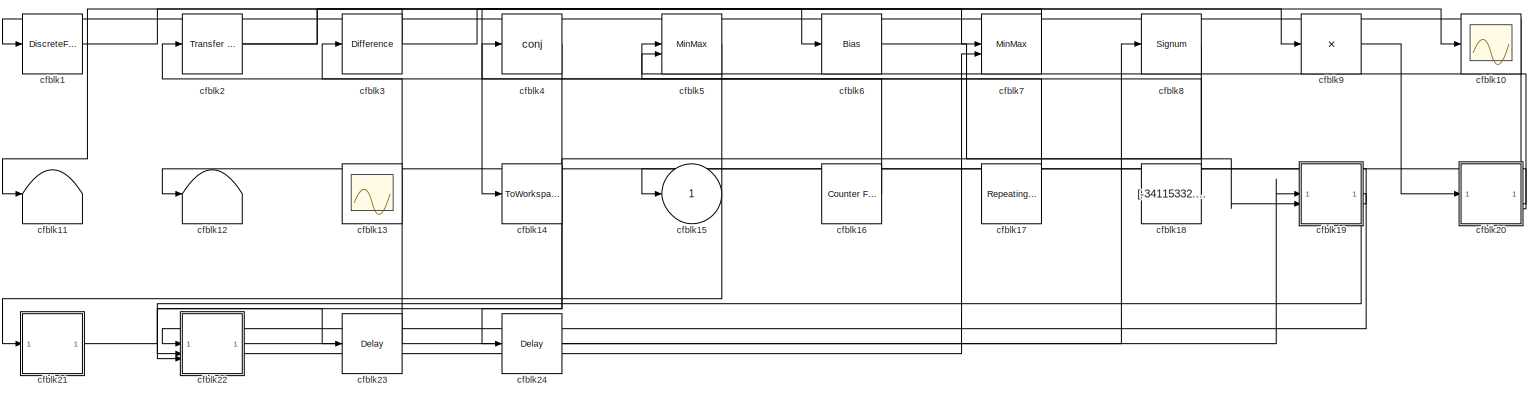
[diagram: root canvas - part 1/1, most of the canvas]
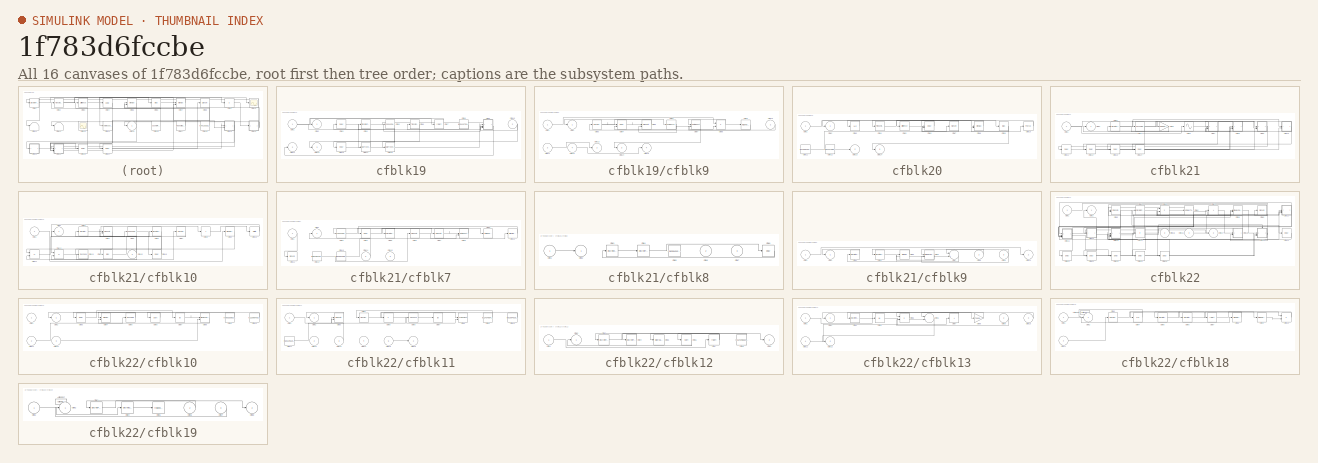
[diagram: thumbnail index - all 16 canvases of the model, root first then tree order]
MODEL slx_1f783d6fccbe
KIND model
CONFIG AbsTol = auto
CONFIG EnableMultiTasking = off
CONFIG FixedStep = auto
CONFIG MaxStep = auto
CONFIG MinStep = auto
CONFIG RelTol = 1e-3
CONFIG SampleTimeConstraint = Unconstrained
CONFIG SolverName = VariableStepAuto
CONFIG StartTime = 0.0
CONFIG StopTime = 10.0
BLOCK [DiscreteFir] cfblk1
  InputPortMap = u0
  OutputPortMap = o0
  SampleTime = 1
BLOCK [Scope] cfblk10
  Floating = off
  NumInputPorts = 1
BLOCK [Terminator] cfblk11
BLOCK [Terminator] cfblk12
BLOCK [Scope] cfblk13
  Floating = on
  NumInputPorts = 1
BLOCK [ToWorkspace] cfblk14
  FixptAsFi = on
  MaxDataPoints = inf
  SampleTime = -1
  SaveFormat = Timeseries
  VariableName = nqrlesy
BLOCK [Outport] cfblk15
BLOCK [Reference] cfblk16  REF=simulink/Sources/Counter
Free-Running
  SourceBlock = simulink/Sources/Counter\nFree-Running
  SourceType = Counter Free-Running
BLOCK [Reference] cfblk17  REF=simulink/Sources/Repeating
Sequence
  SourceBlock = simulink/Sources/Repeating\nSequence
  SourceType = Repeating table
BLOCK [Constant] cfblk18
  SampleTime = 1
  Value = [-34115332.488263]
BLOCK [SubSystem] cfblk19
BLOCK [Inport] cfblk19/cfblk1
BLOCK [Inport] cfblk19/cfblk10
  Port = 2
BLOCK [Outport] cfblk19/cfblk11
  Port = 2
BLOCK [Outport] cfblk19/cfblk12
  Port = 3
BLOCK [Delay] cfblk19/cfblk13
  InputPortMap = u0
  SampleTime = 1
BLOCK [DataTypeConversion] cfblk19/cfblk14
  RndMeth = Floor
  SaturateOnIntegerOverflow = off
BLOCK [DataTypeConversion] cfblk19/cfblk15
  RndMeth = Floor
  SaturateOnIntegerOverflow = off
BLOCK [Outport] cfblk19/cfblk2
BLOCK [Delay] cfblk19/cfblk3
  InputPortMap = u0
  SampleTime = 1
BLOCK [DiscreteZeroPole] cfblk19/cfblk4
  Gain = 1
  Poles = [0 0.5]
BLOCK [Reference] cfblk19/cfblk5  REF=simulink/Discrete/Tapped Delay
  SourceBlock = simulink/Discrete/Tapped Delay
  SourceType = Tapped Delay Line
BLOCK [Reference] cfblk19/cfblk6  REF=simulink/Discrete/Transfer Fcn
Lead or Lag
  SourceBlock = simulink/Discrete/Transfer Fcn\nLead or Lag
  SourceType = Lead or Lag Compensator
BLOCK [Sqrt] cfblk19/cfblk7
  AlgorithmType = Newton-Raphson
  Operator = rSqrt
BLOCK [Constant] cfblk19/cfblk8
  SampleTime = 1
  Value = [482412791.099868]
BLOCK [SubSystem] cfblk19/cfblk9
BLOCK [Inport] cfblk19/cfblk9/cfblk1
BLOCK [Inport] cfblk19/cfblk9/cfblk10
  Port = 2
BLOCK [Inport] cfblk19/cfblk9/cfblk11
  Port = 3
BLOCK [Inport] cfblk19/cfblk9/cfblk12
  Port = 4
BLOCK [Outport] cfblk19/cfblk9/cfblk13
  Port = 2
BLOCK [Outport] cfblk19/cfblk9/cfblk14
  Port = 3
BLOCK [Outport] cfblk19/cfblk9/cfblk15
  Port = 4
BLOCK [Outport] cfblk19/cfblk9/cfblk2
BLOCK [Reference] cfblk19/cfblk9/cfblk3  REF=simulink/Discrete/Transfer Fcn
Lead or Lag
  SourceBlock = simulink/Discrete/Transfer Fcn\nLead or Lag
  SourceType = Lead or Lag Compensator
BLOCK [Delay] cfblk19/cfblk9/cfblk4
  InputPortMap = u0,e6
  SampleTime = 1
  ShowEnablePort = on
BLOCK [Reference] cfblk19/cfblk9/cfblk5  REF=slpidlib/PID Controller (2DOF)
  LibrarySourceBlock = simulink/Discrete/Discrete PID Controller (2DOF)
  SourceBlock = slpidlib/PID Controller (2DOF)
  SourceType = PID 2dof
BLOCK [ComplexToRealImag] cfblk19/cfblk9/cfblk6
BLOCK [DotProduct] cfblk19/cfblk9/cfblk7
  OutDataTypeStr = Inherit: Inherit via internal rule
BLOCK [Product] cfblk19/cfblk9/cfblk8
  Inputs = **
BLOCK [Trigonometry] cfblk19/cfblk9/cfblk9
BLOCK [Reference] cfblk2  REF=simulink/Discrete/Transfer Fcn
Lead or Lag
  SourceBlock = simulink/Discrete/Transfer Fcn\nLead or Lag
  SourceType = Lead or Lag Compensator
BLOCK [SubSystem] cfblk20
BLOCK [Inport] cfblk20/cfblk1
BLOCK [Polyval] cfblk20/cfblk10
  Coefs = [ +2.081618890e-019, -1.441693666e-014, +4.719686976e-010, -8.536869453e-006, +1.621573104e-001, -8.087801117e+001 ]
BLOCK [Constant] cfblk20/cfblk11
  SampleTime = 1
  Value = [314336432.073428]
BLOCK [Constant] cfblk20/cfblk12
  SampleTime = 1
  Value = [794447489.653116]
BLOCK [Outport] cfblk20/cfblk13
  Port = 2
BLOCK [Outport] cfblk20/cfblk14
  Port = 3
BLOCK [Outport] cfblk20/cfblk2
BLOCK [UnitDelay] cfblk20/cfblk3
  HasFrameUpgradeWarning = on
BLOCK [Reference] cfblk20/cfblk4  REF=slpidlib/PID Controller
  LibrarySourceBlock = simulink/Discrete/Discrete PID Controller
  SourceBlock = slpidlib/PID Controller
  SourceType = PID 1dof
BLOCK [Reference] cfblk20/cfblk5  REF=simulink/Discrete/Difference
  SourceBlock = simulink/Discrete/Difference
  SourceType = Difference
BLOCK [Delay] cfblk20/cfblk6
  DelayLengthSource = Input port
  InputPortMap = u0,p1
  SampleTime = 1
BLOCK [Signum] cfblk20/cfblk7
BLOCK [MinMax] cfblk20/cfblk8
  Function = max
  Inputs = 2
BLOCK [Bias] cfblk20/cfblk9
  Bias = [-444070323.174999]
  SaturateOnIntegerOverflow = off
BLOCK [SubSystem] cfblk21
BLOCK [Inport] cfblk21/cfblk1
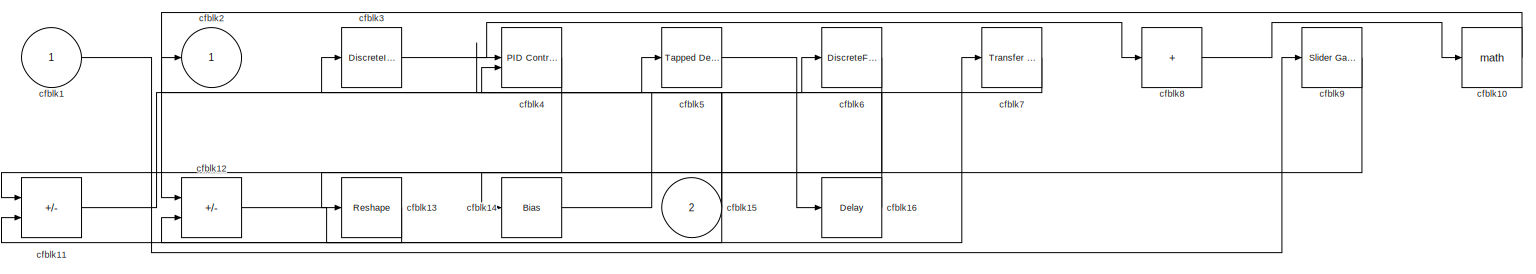
[diagram: cfblk21/cfblk10 - part 1/1, most of the canvas]
BLOCK [SubSystem] cfblk21/cfblk10
BLOCK [Inport] cfblk21/cfblk10/cfblk1
BLOCK [Math] cfblk21/cfblk10/cfblk10
BLOCK [Sum] cfblk21/cfblk10/cfblk11
  IconShape = rectangular
  Inputs = --
BLOCK [Sum] cfblk21/cfblk10/cfblk12
  IconShape = rectangular
  Inputs = --
BLOCK [Reshape] cfblk21/cfblk10/cfblk13
BLOCK [Bias] cfblk21/cfblk10/cfblk14
  Bias = [477811267.919728]
  SaturateOnIntegerOverflow = off
BLOCK [Inport] cfblk21/cfblk10/cfblk15
  Port = 2
BLOCK [Delay] cfblk21/cfblk10/cfblk16
  InputPortMap = u0
  SampleTime = 1
BLOCK [Outport] cfblk21/cfblk10/cfblk2
BLOCK [DiscreteIntegrator] cfblk21/cfblk10/cfblk3
  ICPrevOutput = DiscIntNeverNeededParam
  ICPrevScaledInput = DiscIntNeverNeededParam
  InitialConditionSetting = Auto
BLOCK [Reference] cfblk21/cfblk10/cfblk4  REF=slpidlib/PID Controller (2DOF)
  LibrarySourceBlock = simulink/Discrete/Discrete PID Controller (2DOF)
  SourceBlock = slpidlib/PID Controller (2DOF)
  SourceType = PID 2dof
BLOCK [Reference] cfblk21/cfblk10/cfblk5  REF=simulink/Discrete/Tapped Delay
  SourceBlock = simulink/Discrete/Tapped Delay
  SourceType = Tapped Delay Line
BLOCK [DiscreteFilter] cfblk21/cfblk10/cfblk6
  InputPortMap = u0
  SampleTime = 1
BLOCK [Reference] cfblk21/cfblk10/cfblk7  REF=simulink/Discrete/Transfer Fcn
First Order
  SourceBlock = simulink/Discrete/Transfer Fcn\nFirst Order
  SourceType = First Order Transfer Fcn
BLOCK [Sum] cfblk21/cfblk10/cfblk8
  IconShape = rectangular
  Inputs = +
BLOCK [Reference] cfblk21/cfblk10/cfblk9  REF=simulink/Math
Operations/Slider
Gain
  SourceBlock = simulink/Math\nOperations/Slider\nGain
  SourceType = Slider Gain
BLOCK [Delay] cfblk21/cfblk11
  InputPortMap = u0
  SampleTime = 1
BLOCK [Delay] cfblk21/cfblk12
  InputPortMap = u0
  SampleTime = 1
BLOCK [Delay] cfblk21/cfblk13
  InputPortMap = u0
  SampleTime = 1
BLOCK [Delay] cfblk21/cfblk14
  InputPortMap = u0
  SampleTime = 1
BLOCK [Outport] cfblk21/cfblk2
BLOCK [DiscreteTransferFcn] cfblk21/cfblk3
  InputPortMap = u0
  SampleTime = 1
BLOCK [Rounding] cfblk21/cfblk4
BLOCK [Gain] cfblk21/cfblk5
  Gain = [-866025138.499674]
BLOCK [Sin] cfblk21/cfblk6
  SampleTime = 0
  TimeSource = Use external signal
BLOCK [SubSystem] cfblk21/cfblk7
BLOCK [Inport] cfblk21/cfblk7/cfblk1
BLOCK [Reference] cfblk21/cfblk7/cfblk10  REF=simulink/Math
Operations/Slider
Gain
  SourceBlock = simulink/Math\nOperations/Slider\nGain
  SourceType = Slider Gain
BLOCK [Signum] cfblk21/cfblk7/cfblk11
BLOCK [Constant] cfblk21/cfblk7/cfblk12
  SampleTime = 1
  Value = [180796470.081632]
BLOCK [Constant] cfblk21/cfblk7/cfblk13
  SampleTime = 1
  Value = [562691306.344093]
BLOCK [Inport] cfblk21/cfblk7/cfblk14
  Port = 2
BLOCK [Inport] cfblk21/cfblk7/cfblk15
  Port = 3
BLOCK [Outport] cfblk21/cfblk7/cfblk2
BLOCK [Reference] cfblk21/cfblk7/cfblk3  REF=simulink/Discrete/Tapped Delay
  SourceBlock = simulink/Discrete/Tapped Delay
  SourceType = Tapped Delay Line
BLOCK [Delay] cfblk21/cfblk7/cfblk4
  InputPortMap = u0
  SampleTime = 1
BLOCK [DiscreteFilter] cfblk21/cfblk7/cfblk5
  InputPortMap = u0
  SampleTime = 1
BLOCK [Reference] cfblk21/cfblk7/cfblk6  REF=slpidlib/PID Controller
  LibrarySourceBlock = simulink/Discrete/Discrete PID Controller
  SourceBlock = slpidlib/PID Controller
  SourceType = PID 1dof
BLOCK [Reference] cfblk21/cfblk7/cfblk7  REF=slpidlib/PID Controller
  LibrarySourceBlock = simulink/Discrete/Discrete PID Controller
  SourceBlock = slpidlib/PID Controller
  SourceType = PID 1dof
BLOCK [DotProduct] cfblk21/cfblk7/cfblk8
  OutDataTypeStr = Inherit: Inherit via internal rule
BLOCK [Trigonometry] cfblk21/cfblk7/cfblk9
BLOCK [SubSystem] cfblk21/cfblk8
BLOCK [Inport] cfblk21/cfblk8/cfblk1
BLOCK [Outport] cfblk21/cfblk8/cfblk2
BLOCK [DiscreteZeroPole] cfblk21/cfblk8/cfblk3
  Gain = 1
  Poles = [0 0.5]
BLOCK [DiscreteTransferFcn] cfblk21/cfblk8/cfblk4
  InputPortMap = u0
  SampleTime = 1
BLOCK [Constant] cfblk21/cfblk8/cfblk5
  SampleTime = 1
  Value = [362304212.207285]
BLOCK [Inport] cfblk21/cfblk8/cfblk6
  Port = 2
BLOCK [Inport] cfblk21/cfblk8/cfblk7
  Port = 3
BLOCK [Delay] cfblk21/cfblk8/cfblk8
  InputPortMap = u0
  SampleTime = 1
BLOCK [SubSystem] cfblk21/cfblk9
BLOCK [Inport] cfblk21/cfblk9/cfblk1
BLOCK [Outport] cfblk21/cfblk9/cfblk10
  Port = 2
BLOCK [Outport] cfblk21/cfblk9/cfblk2
BLOCK [DiscreteStateSpace] cfblk21/cfblk9/cfblk3
BLOCK [DiscreteFilter] cfblk21/cfblk9/cfblk4
  InputPortMap = u0
  SampleTime = 1
BLOCK [MinMax] cfblk21/cfblk9/cfblk5
  Function = max
BLOCK [Reference] cfblk21/cfblk9/cfblk6  REF=simulink/Math
Operations/MinMax
Running
Resettable
  SourceBlock = simulink/Math\nOperations/MinMax\nRunning\nResettable
  SourceType = MinMax Running Resettable
BLOCK [Sum] cfblk21/cfblk9/cfblk7
  Inputs = |++
BLOCK [Inport] cfblk21/cfblk9/cfblk8
  Port = 2
BLOCK [Inport] cfblk21/cfblk9/cfblk9
  Port = 3
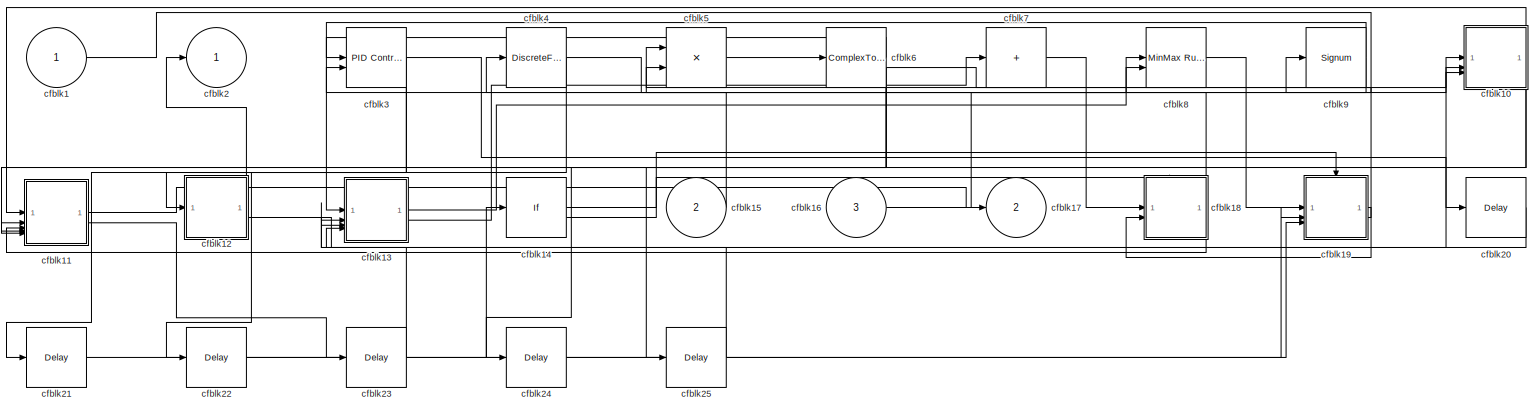
[diagram: cfblk22 - part 1/1, most of the canvas]
BLOCK [SubSystem] cfblk22
BLOCK [Inport] cfblk22/cfblk1
BLOCK [SubSystem] cfblk22/cfblk10
BLOCK [Inport] cfblk22/cfblk10/cfblk1
BLOCK [Constant] cfblk22/cfblk10/cfblk10
  SampleTime = 1
  Value = [-122900433.075099]
BLOCK [Inport] cfblk22/cfblk10/cfblk11
  Port = 2
BLOCK [Inport] cfblk22/cfblk10/cfblk12
  Port = 3
BLOCK [Outport] cfblk22/cfblk10/cfblk2
BLOCK [Delay] cfblk22/cfblk10/cfblk3
  InputPortMap = u0
  SampleTime = 1
BLOCK [MinMax] cfblk22/cfblk10/cfblk4
  Function = max
  Inputs = 2
BLOCK [Rounding] cfblk22/cfblk10/cfblk5
BLOCK [Sqrt] cfblk22/cfblk10/cfblk6
BLOCK [Abs] cfblk22/cfblk10/cfblk7
  SaturateOnIntegerOverflow = off
BLOCK [Reference] cfblk22/cfblk10/cfblk8  REF=simulink/Math
Operations/MinMax
Running
Resettable
  SourceBlock = simulink/Math\nOperations/MinMax\nRunning\nResettable
  SourceType = MinMax Running Resettable
BLOCK [Constant] cfblk22/cfblk10/cfblk9
  SampleTime = 1
  Value = [-560325852.607086]
BLOCK [SubSystem] cfblk22/cfblk11
BLOCK [Inport] cfblk22/cfblk11/cfblk1
BLOCK [Constant] cfblk22/cfblk11/cfblk10
  SampleTime = 1
  Value = [551094520.283182]
BLOCK [Constant] cfblk22/cfblk11/cfblk11
  SampleTime = 1
  Value = [450119510.127946]
BLOCK [Inport] cfblk22/cfblk11/cfblk12
  Port = 2
BLOCK [Inport] cfblk22/cfblk11/cfblk13
  Port = 3
BLOCK [Inport] cfblk22/cfblk11/cfblk14
  Port = 4
BLOCK [Inport] cfblk22/cfblk11/cfblk15
  Port = 5
BLOCK [Outport] cfblk22/cfblk11/cfblk16
  Port = 2
BLOCK [Outport] cfblk22/cfblk11/cfblk2
BLOCK [Reference] cfblk22/cfblk11/cfblk3  REF=slpidlib/PID Controller (2DOF)
  LibrarySourceBlock = simulink/Discrete/Discrete PID Controller (2DOF)
  SourceBlock = slpidlib/PID Controller (2DOF)
  SourceType = PID 2dof
BLOCK [Reference] cfblk22/cfblk11/cfblk4  REF=simulink/Discrete/Transfer Fcn
Real Zero
  SourceBlock = simulink/Discrete/Transfer Fcn\nReal Zero
  SourceType = Transfer Fcn Real Zero
BLOCK [Product] cfblk22/cfblk11/cfblk5
  Inputs = *
BLOCK [Squeeze] cfblk22/cfblk11/cfblk6
BLOCK [Abs] cfblk22/cfblk11/cfblk7
  SaturateOnIntegerOverflow = off
BLOCK [Assignment] cfblk22/cfblk11/cfblk8
  DiagnosticForDimensions = Warning
  IndexOptions = Index vector (dialog)
  Indices = 1
  OutputSizes = 1
BLOCK [Constant] cfblk22/cfblk11/cfblk9
  SampleTime = 1
  Value = [712434894.740537]
BLOCK [SubSystem] cfblk22/cfblk12
BLOCK [Inport] cfblk22/cfblk12/cfblk1
BLOCK [Outport] cfblk22/cfblk12/cfblk2
BLOCK [DiscreteFilter] cfblk22/cfblk12/cfblk3
  InputPortMap = u0
  SampleTime = 1
BLOCK [DiscreteTransferFcn] cfblk22/cfblk12/cfblk4
  InputPortMap = u0
  SampleTime = 1
BLOCK [Reference] cfblk22/cfblk12/cfblk5  REF=simulink/Math
Operations/Slider
Gain
  SourceBlock = simulink/Math\nOperations/Slider\nGain
  SourceType = Slider Gain
BLOCK [Sqrt] cfblk22/cfblk12/cfblk6
BLOCK [Sqrt] cfblk22/cfblk12/cfblk7
  AlgorithmType = Newton-Raphson
  Operator = rSqrt
BLOCK [Constant] cfblk22/cfblk12/cfblk8
  SampleTime = 1
  Value = [-614196021.152606]
BLOCK [Outport] cfblk22/cfblk12/cfblk9
  Port = 2
BLOCK [SubSystem] cfblk22/cfblk13
BLOCK [Inport] cfblk22/cfblk13/cfblk1
BLOCK [Inport] cfblk22/cfblk13/cfblk10
  Port = 3
BLOCK [Inport] cfblk22/cfblk13/cfblk11
  Port = 4
BLOCK [Outport] cfblk22/cfblk13/cfblk12
  Port = 2
BLOCK [Outport] cfblk22/cfblk13/cfblk2
BLOCK [DiscreteStateSpace] cfblk22/cfblk13/cfblk3
BLOCK [Abs] cfblk22/cfblk13/cfblk4
  SaturateOnIntegerOverflow = off
BLOCK [Product] cfblk22/cfblk13/cfblk5
BLOCK [Sum] cfblk22/cfblk13/cfblk6
  Inputs = |++
BLOCK [Sum] cfblk22/cfblk13/cfblk7
  IconShape = rectangular
  Inputs = +
BLOCK [Gain] cfblk22/cfblk13/cfblk8
  Gain = [-734592676.047484]
BLOCK [Inport] cfblk22/cfblk13/cfblk9
  Port = 2
BLOCK [If] cfblk22/cfblk14
  IfExpression = u1 >= 0
  SampleTime = 1
BLOCK [Inport] cfblk22/cfblk15
  Port = 2
BLOCK [Inport] cfblk22/cfblk16
  Port = 3
BLOCK [Outport] cfblk22/cfblk17
  Port = 2
BLOCK [SubSystem] cfblk22/cfblk18
  TreatAsAtomicUnit = on
BLOCK [ActionPort] cfblk22/cfblk18/Action Port
  ActionPortLabel = if(u1 >= 0)
BLOCK [Inport] cfblk22/cfblk18/cfblk1
BLOCK [Product] cfblk22/cfblk18/cfblk10
  Inputs = **
BLOCK [Inport] cfblk22/cfblk18/cfblk11
  Port = 2
BLOCK [Outport] cfblk22/cfblk18/cfblk2
BLOCK [Reference] cfblk22/cfblk18/cfblk3  REF=simulink/Discrete/Transfer Fcn
First Order
  SourceBlock = simulink/Discrete/Transfer Fcn\nFirst Order
  SourceType = First Order Transfer Fcn
BLOCK [UnitDelay] cfblk22/cfblk18/cfblk4
  HasFrameUpgradeWarning = on
  SampleTime = -1
BLOCK [DiscreteIntegrator] cfblk22/cfblk18/cfblk5
  ICPrevOutput = DiscIntNeverNeededParam
  ICPrevScaledInput = DiscIntNeverNeededParam
  InitialConditionSetting = Auto
  SampleTime = -1
BLOCK [DiscreteIntegrator] cfblk22/cfblk18/cfblk6
  ICPrevOutput = DiscIntNeverNeededParam
  ICPrevScaledInput = DiscIntNeverNeededParam
  InitialConditionSetting = Auto
  SampleTime = -1
BLOCK [Sqrt] cfblk22/cfblk18/cfblk7
  AlgorithmType = Newton-Raphson
  Operator = rSqrt
BLOCK [Reference] cfblk22/cfblk18/cfblk8  REF=simulink/Math
Operations/Slider
Gain
  SourceBlock = simulink/Math\nOperations/Slider\nGain
  SourceType = Slider Gain
BLOCK [Trigonometry] cfblk22/cfblk18/cfblk9
BLOCK [SubSystem] cfblk22/cfblk19
  TreatAsAtomicUnit = on
BLOCK [ActionPort] cfblk22/cfblk19/Action Port
  ActionPortLabel = else
BLOCK [Inport] cfblk22/cfblk19/cfblk1
BLOCK [Outport] cfblk22/cfblk19/cfblk2
BLOCK [DiscreteFir] cfblk22/cfblk19/cfblk3
  InputPortMap = u0
  OutputPortMap = o0
BLOCK [DiscreteStateSpace] cfblk22/cfblk19/cfblk4
  SampleTime = -1
BLOCK [Trigonometry] cfblk22/cfblk19/cfblk5
BLOCK [Inport] cfblk22/cfblk19/cfblk6
  Port = 2
BLOCK [Inport] cfblk22/cfblk19/cfblk7
  Port = 3
BLOCK [Outport] cfblk22/cfblk19/cfblk8
  Port = 2
BLOCK [Outport] cfblk22/cfblk2
BLOCK [Delay] cfblk22/cfblk20
  InputPortMap = u0
  SampleTime = 1
BLOCK [Delay] cfblk22/cfblk21
  InputPortMap = u0
  SampleTime = 1
BLOCK [Delay] cfblk22/cfblk22
  InputPortMap = u0
  SampleTime = 1
BLOCK [Delay] cfblk22/cfblk23
  InputPortMap = u0
  SampleTime = 1
BLOCK [Delay] cfblk22/cfblk24
  InputPortMap = u0
  SampleTime = 1
BLOCK [Delay] cfblk22/cfblk25
  InputPortMap = u0
  SampleTime = 1
BLOCK [Reference] cfblk22/cfblk3  REF=slpidlib/PID Controller (2DOF)
  LibrarySourceBlock = simulink/Discrete/Discrete PID Controller (2DOF)
  SourceBlock = slpidlib/PID Controller (2DOF)
  SourceType = PID 2dof
BLOCK [DiscreteFir] cfblk22/cfblk4
  InputPortMap = u0
  OutputPortMap = o0
  SampleTime = 1
BLOCK [Product] cfblk22/cfblk5
  Inputs = **
BLOCK [ComplexToMagnitudeAngle] cfblk22/cfblk6
BLOCK [Sum] cfblk22/cfblk7
  IconShape = rectangular
  Inputs = +
BLOCK [Reference] cfblk22/cfblk8  REF=simulink/Math
Operations/MinMax
Running
Resettable
  SourceBlock = simulink/Math\nOperations/MinMax\nRunning\nResettable
  SourceType = MinMax Running Resettable
BLOCK [Signum] cfblk22/cfblk9
BLOCK [Delay] cfblk23
  InputPortMap = u0
  SampleTime = 1
BLOCK [Delay] cfblk24
  InputPortMap = u0
  SampleTime = 1
BLOCK [Reference] cfblk3  REF=simulink/Discrete/Difference
  SourceBlock = simulink/Discrete/Difference
  SourceType = Difference
BLOCK [Math] cfblk4
  Operator = conj
BLOCK [MinMax] cfblk5
  Function = max
  Inputs = 2
BLOCK [Bias] cfblk6
  Bias = [-502232620.973859]
  SaturateOnIntegerOverflow = off
BLOCK [MinMax] cfblk7
  Function = max
  Inputs = 2
BLOCK [Signum] cfblk8
BLOCK [Product] cfblk9
  Inputs = *
LINE cfblk16:1 -> cfblk3:1
LINE cfblk17:1 -> cfblk4:1
LINE cfblk18:1 -> cfblk5:2
NET cfblk19/cfblk10:1 -> cfblk19/cfblk15:1, cfblk19/cfblk9:4
LINE cfblk19/cfblk13:1 -> cfblk19/cfblk9:2
LINE cfblk19/cfblk14:1 -> cfblk19/cfblk4:1
LINE cfblk19/cfblk15:1 -> cfblk19/cfblk3:1
NET cfblk19/cfblk1:1 -> cfblk19/cfblk7:1, cfblk19/cfblk9:3
LINE cfblk19/cfblk3:1 -> cfblk19/cfblk14:1
LINE cfblk19/cfblk4:1 -> cfblk19/cfblk9:1
LINE cfblk19/cfblk5:1 -> cfblk19/cfblk13:1
LINE cfblk19/cfblk6:1 -> cfblk19/cfblk12:1
LINE cfblk19/cfblk7:1 -> cfblk19/cfblk2:1
LINE cfblk19/cfblk8:1 -> cfblk19/cfblk6:1
LINE cfblk19/cfblk9/cfblk10:1 -> cfblk19/cfblk9/cfblk3:1
LINE cfblk19/cfblk9/cfblk11:1 -> cfblk19/cfblk9/cfblk13:1
LINE cfblk19/cfblk9/cfblk12:1 -> cfblk19/cfblk9/cfblk15:1
LINE cfblk19/cfblk9/cfblk1:1 -> cfblk19/cfblk9/cfblk8:1
NET cfblk19/cfblk9/cfblk3:1 -> cfblk19/cfblk9/cfblk4:1, cfblk19/cfblk9/cfblk6:1
LINE cfblk19/cfblk9/cfblk4:1 -> cfblk19/cfblk9/cfblk5:1
LINE cfblk19/cfblk9/cfblk5:1 -> cfblk19/cfblk9/cfblk2:1
LINE cfblk19/cfblk9/cfblk6:1 -> cfblk19/cfblk9/cfblk5:2
NET cfblk19/cfblk9/cfblk6:2 -> cfblk19/cfblk9/cfblk4:2, cfblk19/cfblk9/cfblk8:2
LINE cfblk19/cfblk9/cfblk7:1 -> cfblk19/cfblk9/cfblk14:1
NET cfblk19/cfblk9/cfblk8:1 -> cfblk19/cfblk9/cfblk7:1, cfblk19/cfblk9/cfblk9:1
LINE cfblk19/cfblk9/cfblk9:1 -> cfblk19/cfblk9/cfblk7:2
LINE cfblk19/cfblk9:1 -> cfblk19/cfblk5:1
LINE cfblk19/cfblk9:2 -> cfblk19/cfblk11:1
LINE cfblk19:1 -> cfblk22:1
LINE cfblk19:2 -> cfblk12:1
LINE cfblk19:3 -> cfblk22:3
LINE cfblk1:1 -> cfblk10:1
LINE cfblk20/cfblk10:1 -> cfblk20/cfblk4:1
LINE cfblk20/cfblk11:1 -> cfblk20/cfblk7:1
LINE cfblk20/cfblk12:1 -> cfblk20/cfblk13:1
LINE cfblk20/cfblk1:1 -> cfblk20/cfblk8:1
LINE cfblk20/cfblk3:1 -> cfblk20/cfblk2:1
LINE cfblk20/cfblk4:1 -> cfblk20/cfblk9:1
LINE cfblk20/cfblk5:1 -> cfblk20/cfblk10:1
LINE cfblk20/cfblk6:1 -> cfblk20/cfblk3:1
NET cfblk20/cfblk7:1 -> cfblk20/cfblk5:1, cfblk20/cfblk6:2
LINE cfblk20/cfblk8:1 -> cfblk20/cfblk6:1
NET cfblk20/cfblk9:1 -> cfblk20/cfblk14:1, cfblk20/cfblk8:2
LINE cfblk20:1 -> cfblk1:1
LINE cfblk20:2 -> cfblk15:1
LINE cfblk20:3 -> cfblk5:1
LINE cfblk21/cfblk10/cfblk10:1 -> cfblk21/cfblk10/cfblk12:1
LINE cfblk21/cfblk10/cfblk11:1 -> cfblk21/cfblk10/cfblk5:1
LINE cfblk21/cfblk10/cfblk12:1 -> cfblk21/cfblk10/cfblk7:1
LINE cfblk21/cfblk10/cfblk13:1 -> cfblk21/cfblk10/cfblk12:2
LINE cfblk21/cfblk10/cfblk14:1 -> cfblk21/cfblk10/cfblk6:1
NET cfblk21/cfblk10/cfblk15:1 -> cfblk21/cfblk10/cfblk11:2, cfblk21/cfblk10/cfblk2:1, cfblk21/cfblk10/cfblk3:1
LINE cfblk21/cfblk10/cfblk16:1 -> cfblk21/cfblk10/cfblk4:1
LINE cfblk21/cfblk10/cfblk1:1 -> cfblk21/cfblk10/cfblk9:1
LINE cfblk21/cfblk10/cfblk3:1 -> cfblk21/cfblk10/cfblk8:1
LINE cfblk21/cfblk10/cfblk4:1 -> cfblk21/cfblk10/cfblk14:1
LINE cfblk21/cfblk10/cfblk5:1 -> cfblk21/cfblk10/cfblk16:1
LINE cfblk21/cfblk10/cfblk6:1 -> cfblk21/cfblk10/cfblk11:1
LINE cfblk21/cfblk10/cfblk7:1 -> cfblk21/cfblk10/cfblk4:2
LINE cfblk21/cfblk10/cfblk8:1 -> cfblk21/cfblk10/cfblk10:1
LINE cfblk21/cfblk10/cfblk9:1 -> cfblk21/cfblk10/cfblk13:1
NET cfblk21/cfblk10:1 -> cfblk21/cfblk13:1, cfblk21/cfblk7:1, cfblk21/cfblk7:2
LINE cfblk21/cfblk11:1 -> cfblk21/cfblk8:2
LINE cfblk21/cfblk12:1 -> cfblk21/cfblk10:2
LINE cfblk21/cfblk13:1 -> cfblk21/cfblk9:3
LINE cfblk21/cfblk14:1 -> cfblk21/cfblk8:3
NET cfblk21/cfblk1:1 -> cfblk21/cfblk5:1, cfblk21/cfblk6:1
NET cfblk21/cfblk3:1 -> cfblk21/cfblk10:1, cfblk21/cfblk7:3
NET cfblk21/cfblk4:1 -> cfblk21/cfblk14:1, cfblk21/cfblk9:1, cfblk21/cfblk9:2
LINE cfblk21/cfblk5:1 -> cfblk21/cfblk2:1
LINE cfblk21/cfblk6:1 -> cfblk21/cfblk8:1
LINE cfblk21/cfblk7/cfblk10:1 -> cfblk21/cfblk7/cfblk4:1
LINE cfblk21/cfblk7/cfblk12:1 -> cfblk21/cfblk7/cfblk6:1
LINE cfblk21/cfblk7/cfblk13:1 -> cfblk21/cfblk7/cfblk10:1
LINE cfblk21/cfblk7/cfblk14:1 -> cfblk21/cfblk7/cfblk2:1
LINE cfblk21/cfblk7/cfblk1:1 -> cfblk21/cfblk7/cfblk11:1
LINE cfblk21/cfblk7/cfblk3:1 -> cfblk21/cfblk7/cfblk9:1
LINE cfblk21/cfblk7/cfblk4:1 -> cfblk21/cfblk7/cfblk7:1
LINE cfblk21/cfblk7/cfblk5:1 -> cfblk21/cfblk7/cfblk3:1
LINE cfblk21/cfblk7/cfblk6:1 -> cfblk21/cfblk7/cfblk8:2
LINE cfblk21/cfblk7/cfblk7:1 -> cfblk21/cfblk7/cfblk8:1
LINE cfblk21/cfblk7/cfblk8:1 -> cfblk21/cfblk7/cfblk5:1
LINE cfblk21/cfblk7:1 -> cfblk21/cfblk12:1
LINE cfblk21/cfblk8/cfblk1:1 -> cfblk21/cfblk8/cfblk2:1
LINE cfblk21/cfblk8/cfblk3:1 -> cfblk21/cfblk8/cfblk4:1
LINE cfblk21/cfblk8/cfblk4:1 -> cfblk21/cfblk8/cfblk8:1
LINE cfblk21/cfblk8/cfblk8:1 -> cfblk21/cfblk8/cfblk3:1
LINE cfblk21/cfblk8:1 -> cfblk21/cfblk4:1
LINE cfblk21/cfblk9/cfblk1:1 -> cfblk21/cfblk9/cfblk10:1
LINE cfblk21/cfblk9/cfblk3:1 -> cfblk21/cfblk9/cfblk2:1
LINE cfblk21/cfblk9/cfblk4:1 -> cfblk21/cfblk9/cfblk7:2
LINE cfblk21/cfblk9/cfblk5:1 -> cfblk21/cfblk9/cfblk4:1
LINE cfblk21/cfblk9/cfblk6:1 -> cfblk21/cfblk9/cfblk5:1
LINE cfblk21/cfblk9/cfblk7:1 -> cfblk21/cfblk9/cfblk3:1
LINE cfblk21/cfblk9/cfblk8:1 -> cfblk21/cfblk9/cfblk7:1
NET cfblk21/cfblk9/cfblk9:1 -> cfblk21/cfblk9/cfblk6:1, cfblk21/cfblk9/cfblk6:2
LINE cfblk21/cfblk9:1 -> cfblk21/cfblk11:1
LINE cfblk21/cfblk9:2 -> cfblk21/cfblk3:1
LINE cfblk21:1 -> cfblk23:1
LINE cfblk22/cfblk10/cfblk10:1 -> cfblk22/cfblk10/cfblk3:1
LINE cfblk22/cfblk10/cfblk11:1 -> cfblk22/cfblk10/cfblk5:1
LINE cfblk22/cfblk10/cfblk12:1 -> cfblk22/cfblk10/cfblk8:2
LINE cfblk22/cfblk10/cfblk3:1 -> cfblk22/cfblk10/cfblk7:1
LINE cfblk22/cfblk10/cfblk5:1 -> cfblk22/cfblk10/cfblk4:1
LINE cfblk22/cfblk10/cfblk6:1 -> cfblk22/cfblk10/cfblk2:1
LINE cfblk22/cfblk10/cfblk7:1 -> cfblk22/cfblk10/cfblk8:1
LINE cfblk22/cfblk10/cfblk8:1 -> cfblk22/cfblk10/cfblk4:2
LINE cfblk22/cfblk10/cfblk9:1 -> cfblk22/cfblk10/cfblk6:1
NET cfblk22/cfblk10:1 -> cfblk22/cfblk11:1, cfblk22/cfblk11:2, cfblk22/cfblk11:5
LINE cfblk22/cfblk11/cfblk10:1 -> cfblk22/cfblk11/cfblk5:1
LINE cfblk22/cfblk11/cfblk11:1 -> cfblk22/cfblk11/cfblk3:2
LINE cfblk22/cfblk11/cfblk13:1 -> cfblk22/cfblk11/cfblk3:1
LINE cfblk22/cfblk11/cfblk15:1 -> cfblk22/cfblk11/cfblk16:1
LINE cfblk22/cfblk11/cfblk1:1 -> cfblk22/cfblk11/cfblk6:1
LINE cfblk22/cfblk11/cfblk3:1 -> cfblk22/cfblk11/cfblk2:1
LINE cfblk22/cfblk11/cfblk4:1 -> cfblk22/cfblk11/cfblk8:1
LINE cfblk22/cfblk11/cfblk5:1 -> cfblk22/cfblk11/cfblk8:2
LINE cfblk22/cfblk11/cfblk6:1 -> cfblk22/cfblk11/cfblk7:1
LINE cfblk22/cfblk11/cfblk9:1 -> cfblk22/cfblk11/cfblk4:1
LINE cfblk22/cfblk11:1 -> cfblk22/cfblk17:1
LINE cfblk22/cfblk11:2 -> cfblk22/cfblk23:1
LINE cfblk22/cfblk12/cfblk1:1 -> cfblk22/cfblk12/cfblk7:1
LINE cfblk22/cfblk12/cfblk3:1 -> cfblk22/cfblk12/cfblk9:1
LINE cfblk22/cfblk12/cfblk4:1 -> cfblk22/cfblk12/cfblk3:1
LINE cfblk22/cfblk12/cfblk6:1 -> cfblk22/cfblk12/cfblk2:1
NET cfblk22/cfblk12/cfblk7:1 -> cfblk22/cfblk12/cfblk5:1, cfblk22/cfblk12/cfblk6:1
LINE cfblk22/cfblk12/cfblk8:1 -> cfblk22/cfblk12/cfblk4:1
LINE cfblk22/cfblk12:1 -> cfblk22/cfblk2:1
LINE cfblk22/cfblk12:2 -> cfblk22/cfblk10:1
LINE cfblk22/cfblk13/cfblk10:1 -> cfblk22/cfblk13/cfblk6:1
LINE cfblk22/cfblk13/cfblk11:1 -> cfblk22/cfblk13/cfblk7:1
LINE cfblk22/cfblk13/cfblk1:1 -> cfblk22/cfblk13/cfblk4:1
LINE cfblk22/cfblk13/cfblk3:1 -> cfblk22/cfblk13/cfblk8:1
LINE cfblk22/cfblk13/cfblk4:1 -> cfblk22/cfblk13/cfblk6:2
LINE cfblk22/cfblk13/cfblk5:1 -> cfblk22/cfblk13/cfblk2:1
LINE cfblk22/cfblk13/cfblk6:1 -> cfblk22/cfblk13/cfblk12:1
LINE cfblk22/cfblk13/cfblk7:1 -> cfblk22/cfblk13/cfblk3:1
LINE cfblk22/cfblk13/cfblk8:1 -> cfblk22/cfblk13/cfblk5:1
LINE cfblk22/cfblk13/cfblk9:1 -> cfblk22/cfblk13/cfblk5:2
LINE cfblk22/cfblk13:1 -> cfblk22/cfblk8:1
LINE cfblk22/cfblk13:2 -> cfblk22/cfblk7:1
LINE cfblk22/cfblk14:1 -> cfblk22/cfblk18:ifaction
LINE cfblk22/cfblk14:2 -> cfblk22/cfblk19:ifaction
LINE cfblk22/cfblk15:1 -> cfblk22/cfblk4:1
LINE cfblk22/cfblk16:1 -> cfblk22/cfblk10:3
LINE cfblk22/cfblk18/cfblk10:1 -> cfblk22/cfblk18/cfblk4:1
LINE cfblk22/cfblk18/cfblk11:1 -> cfblk22/cfblk18/cfblk3:1
LINE cfblk22/cfblk18/cfblk1:1 -> cfblk22/cfblk18/cfblk8:1
LINE cfblk22/cfblk18/cfblk3:1 -> cfblk22/cfblk18/cfblk6:1
LINE cfblk22/cfblk18/cfblk4:1 -> cfblk22/cfblk18/cfblk2:1
LINE cfblk22/cfblk18/cfblk5:1 -> cfblk22/cfblk18/cfblk7:1
LINE cfblk22/cfblk18/cfblk6:1 -> cfblk22/cfblk18/cfblk9:1
LINE cfblk22/cfblk18/cfblk7:1 -> cfblk22/cfblk18/cfblk10:1
LINE cfblk22/cfblk18/cfblk8:1 -> cfblk22/cfblk18/cfblk5:1
LINE cfblk22/cfblk18/cfblk9:1 -> cfblk22/cfblk18/cfblk10:2
NET cfblk22/cfblk18:1 -> cfblk22/cfblk11:3, cfblk22/cfblk5:1
LINE cfblk22/cfblk19/cfblk1:1 -> cfblk22/cfblk19/cfblk4:1
LINE cfblk22/cfblk19/cfblk3:1 -> cfblk22/cfblk19/cfblk8:1
LINE cfblk22/cfblk19/cfblk4:1 -> cfblk22/cfblk19/cfblk5:1
LINE cfblk22/cfblk19/cfblk6:1 -> cfblk22/cfblk19/cfblk3:1
LINE cfblk22/cfblk19/cfblk7:1 -> cfblk22/cfblk19/cfblk2:1
LINE cfblk22/cfblk19:1 -> cfblk22/cfblk18:2
LINE cfblk22/cfblk19:2 -> cfblk22/cfblk5:2
LINE cfblk22/cfblk1:1 -> cfblk22/cfblk9:1
LINE cfblk22/cfblk20:1 -> cfblk22/cfblk13:2
LINE cfblk22/cfblk21:1 -> cfblk22/cfblk19:3
LINE cfblk22/cfblk22:1 -> cfblk22/cfblk14:1
LINE cfblk22/cfblk23:1 -> cfblk22/cfblk13:3
LINE cfblk22/cfblk24:1 -> cfblk22/cfblk19:2
LINE cfblk22/cfblk25:1 -> cfblk22/cfblk13:4
NET cfblk22/cfblk3:1 -> cfblk22/cfblk20:1, cfblk22/cfblk21:1, cfblk22/cfblk22:1
NET cfblk22/cfblk4:1 -> cfblk22/cfblk12:1, cfblk22/cfblk8:2
LINE cfblk22/cfblk5:1 -> cfblk22/cfblk6:1
LINE cfblk22/cfblk6:1 -> cfblk22/cfblk3:1
NET cfblk22/cfblk6:2 -> cfblk22/cfblk10:2, cfblk22/cfblk11:4, cfblk22/cfblk24:1, cfblk22/cfblk25:1
LINE cfblk22/cfblk7:1 -> cfblk22/cfblk18:1
LINE cfblk22/cfblk8:1 -> cfblk22/cfblk19:1
NET cfblk22/cfblk9:1 -> cfblk22/cfblk13:1, cfblk22/cfblk3:2
LINE cfblk22:1 -> cfblk8:1
LINE cfblk22:2 -> cfblk7:2
LINE cfblk23:1 -> cfblk2:1
LINE cfblk24:1 -> cfblk19:1
NET cfblk2:1 -> cfblk7:1, cfblk9:1
NET cfblk3:1 -> cfblk11:1, cfblk6:1
LINE cfblk4:1 -> cfblk22:2
LINE cfblk5:1 -> cfblk21:1
LINE cfblk6:1 -> cfblk19:2
LINE cfblk7:1 -> cfblk14:1
LINE cfblk8:1 -> cfblk24:1
LINE cfblk9:1 -> cfblk20:1
note: NET lines group one-source signal fan-out (src -> all destinations, sorted); 1:1 wires keep LINE
